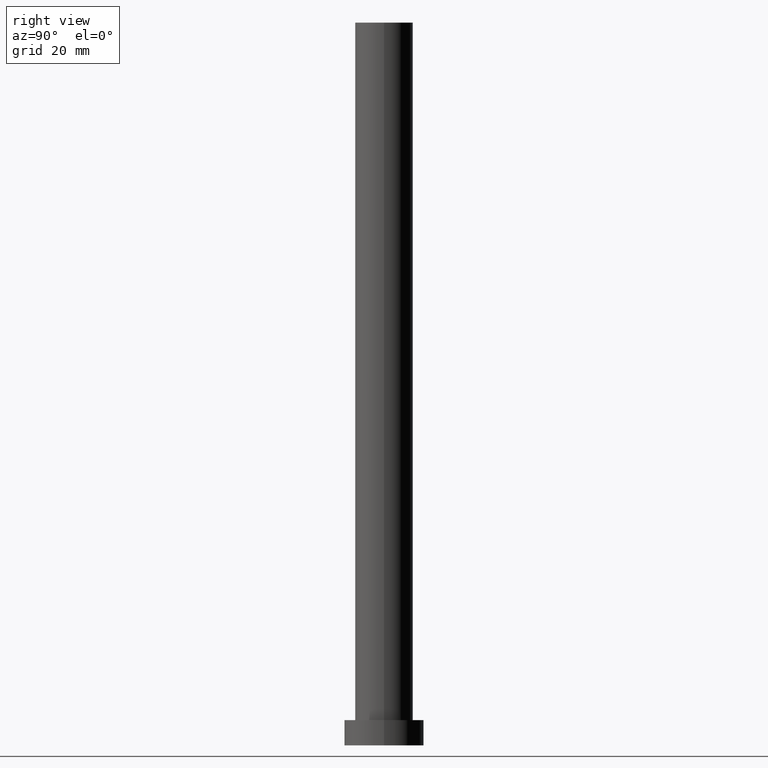
[diagram: clean part render]
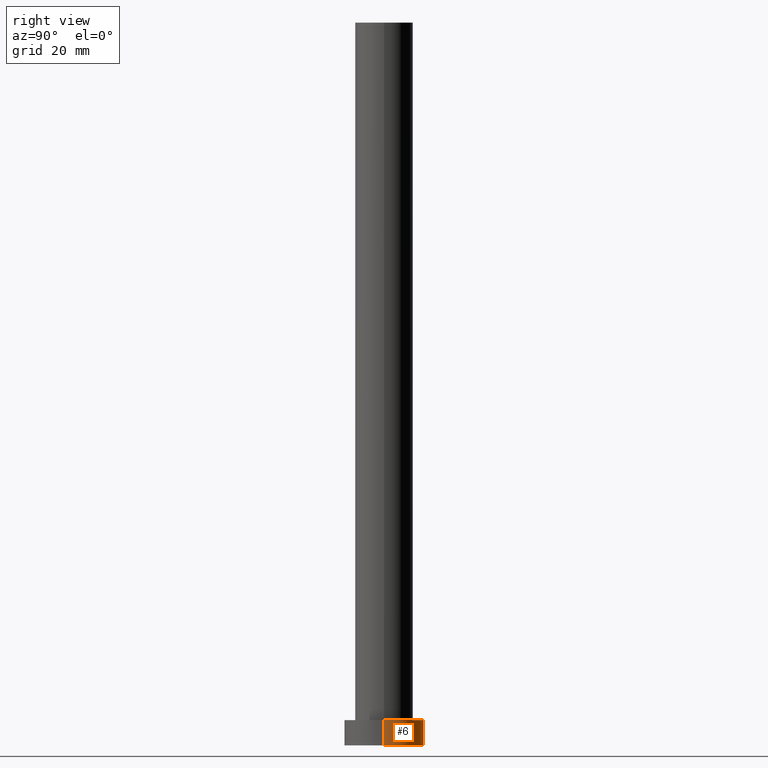
[diagram: same view with one face highlighted and labeled with its STEP entity id]
A machine part, right view. The second image highlights one B-rep face of the part: STEP entity #6.
In plain terms, the highlighted cylindrical surface (partial cylindrical patch) has radius 11 mm, axis along (-0, -0, -1).
Its self-contained STEP definition (entity closure, byte-faithful):
#6 = ADVANCED_FACE ( 'NONE', ( #61 ), #157, .T. ) ;
#16 = VECTOR ( 'NONE', #179, 1000.000000000000000 ) ;
#29 = VECTOR ( 'NONE', #177, 1000.000000000000000 ) ;
#35 = DIRECTION ( 'NONE',  ( 0.000000000000000000, 0.000000000000000000, 1.000000000000000000 ) ) ;
#40 = EDGE_CURVE ( 'NONE', #49, #176, #205, .T. ) ;
#49 = VERTEX_POINT ( 'NONE', #230 ) ;
#53 = VERTEX_POINT ( 'NONE', #78 ) ;
#60 = CARTESIAN_POINT ( 'NONE',  ( -11.00000000000000000, 0.000000000000000000, 7.000000000000000000 ) ) ;
#61 = FACE_OUTER_BOUND ( 'NONE', #173, .T. ) ;
#63 = ORIENTED_EDGE ( 'NONE', *, *, #92, .F. ) ;
#78 = CARTESIAN_POINT ( 'NONE',  ( 11.00000000000000000, 1.347111479062088405E-15, 0.000000000000000000 ) ) ;
#80 = CIRCLE ( 'NONE', #220, 11.00000000000000000 ) ;
#90 = AXIS2_PLACEMENT_3D ( 'NONE', #118, #141, #160 ) ;
#92 = EDGE_CURVE ( 'NONE', #176, #134, #232, .T. ) ;
#107 = DIRECTION ( 'NONE',  ( 1.000000000000000000, 0.000000000000000000, 0.000000000000000000 ) ) ;
#110 = ORIENTED_EDGE ( 'NONE', *, *, #246, .T. ) ;
#118 = CARTESIAN_POINT ( 'NONE',  ( 0.000000000000000000, 0.000000000000000000, 7.000000000000000000 ) ) ;
#123 = LINE ( 'NONE', #140, #16 ) ;
#134 = VERTEX_POINT ( 'NONE', #178 ) ;
#140 = CARTESIAN_POINT ( 'NONE',  ( 11.00000000000000000, 1.347111479062088405E-15, 7.000000000000000000 ) ) ;
#141 = DIRECTION ( 'NONE',  ( -0.000000000000000000, -0.000000000000000000, -1.000000000000000000 ) ) ;
#149 = EDGE_CURVE ( 'NONE', #49, #53, #123, .T. ) ;
#150 = DIRECTION ( 'NONE',  ( 0.000000000000000000, 0.000000000000000000, 1.000000000000000000 ) ) ;
#157 = CYLINDRICAL_SURFACE ( 'NONE', #90, 11.00000000000000000 ) ;
#160 = DIRECTION ( 'NONE',  ( -1.000000000000000000, 0.000000000000000000, 0.000000000000000000 ) ) ;
#173 = EDGE_LOOP ( 'NONE', ( #241, #191, #110, #63 ) ) ;
#176 = VERTEX_POINT ( 'NONE', #248 ) ;
#177 = DIRECTION ( 'NONE',  ( -0.000000000000000000, -0.000000000000000000, -1.000000000000000000 ) ) ;
#178 = CARTESIAN_POINT ( 'NONE',  ( -11.00000000000000000, 0.000000000000000000, 0.000000000000000000 ) ) ;
#179 = DIRECTION ( 'NONE',  ( -0.000000000000000000, -0.000000000000000000, -1.000000000000000000 ) ) ;
#183 = DIRECTION ( 'NONE',  ( 1.000000000000000000, 0.000000000000000000, 0.000000000000000000 ) ) ;
#191 = ORIENTED_EDGE ( 'NONE', *, *, #149, .T. ) ;
#203 = AXIS2_PLACEMENT_3D ( 'NONE', #254, #35, #183 ) ;
#205 = CIRCLE ( 'NONE', #203, 11.00000000000000000 ) ;
#220 = AXIS2_PLACEMENT_3D ( 'NONE', #242, #150, #107 ) ;
#230 = CARTESIAN_POINT ( 'NONE',  ( 11.00000000000000000, 1.347111479062088405E-15, 7.000000000000000000 ) ) ;
#232 = LINE ( 'NONE', #60, #29 ) ;
#241 = ORIENTED_EDGE ( 'NONE', *, *, #40, .F. ) ;
#242 = CARTESIAN_POINT ( 'NONE',  ( 0.000000000000000000, 0.000000000000000000, 0.000000000000000000 ) ) ;
#246 = EDGE_CURVE ( 'NONE', #53, #134, #80, .T. ) ;
#248 = CARTESIAN_POINT ( 'NONE',  ( -11.00000000000000000, 0.000000000000000000, 7.000000000000000000 ) ) ;
#254 = CARTESIAN_POINT ( 'NONE',  ( 0.000000000000000000, 0.000000000000000000, 7.000000000000000000 ) ) ;